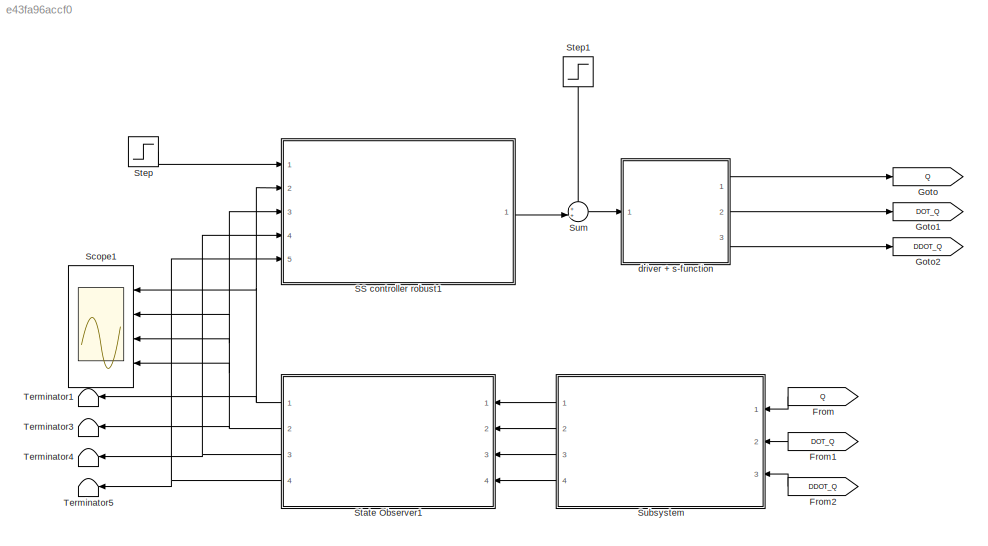
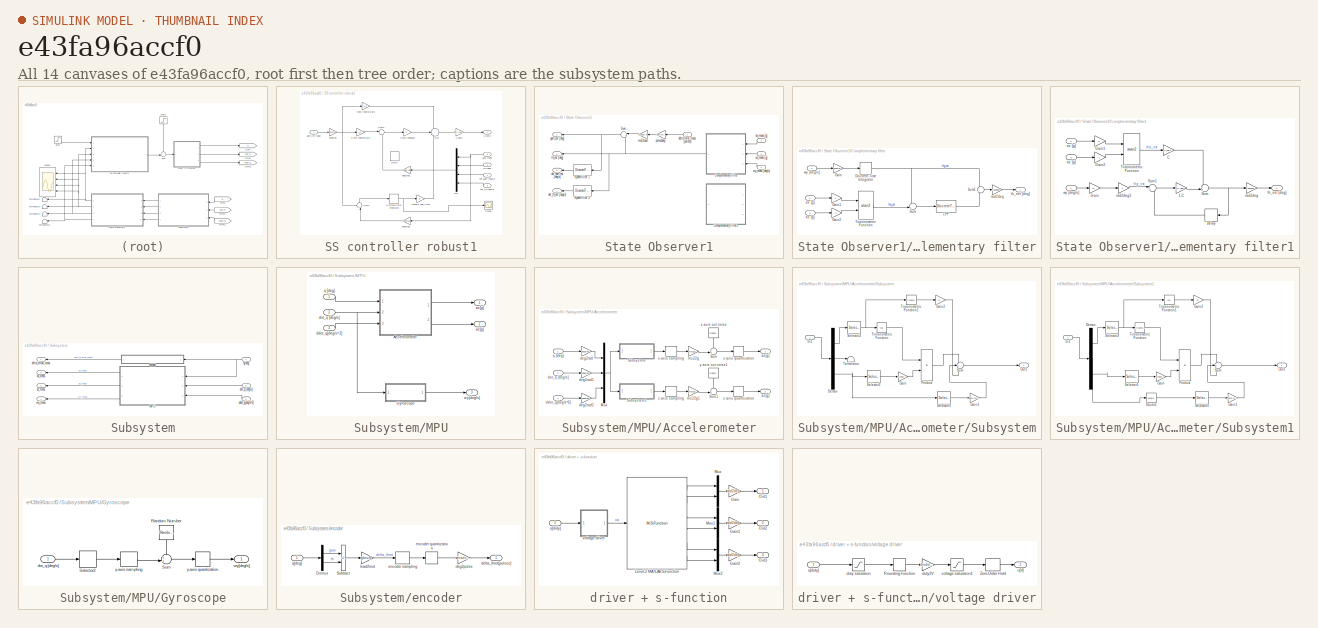
[diagram: thumbnail index - all 14 canvases of the model, root first then tree order]
MODEL slx_e43fa96accf0
KIND model
CONFIG AbsTol = auto
CONFIG EnableMultiTasking = off
CONFIG FixedStep = auto
CONFIG MaxStep = auto
CONFIG MinStep = auto
CONFIG RelTol = 1e-3
CONFIG SampleTimeConstraint = Unconstrained
CONFIG SolverName = VariableStepAuto
CONFIG StartTime = 0.0
CONFIG StopTime = 20.0
BLOCK [From] From
  GotoTag = Q
BLOCK [From] From1
  GotoTag = DOT_Q
BLOCK [From] From2
  GotoTag = DDOT_Q
BLOCK [Goto] Goto
  GotoTag = Q
BLOCK [Goto] Goto1
  GotoTag = DOT_Q
BLOCK [Goto] Goto2
  GotoTag = DDOT_Q
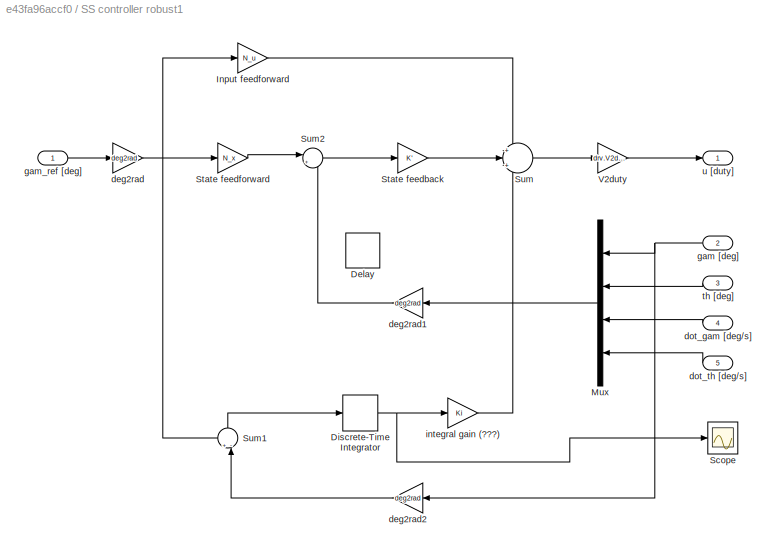
BLOCK [SubSystem] SS controller robust1
  Ports = [5, 1]
  RequestExecContextInheritance = off
BLOCK [Delay] SS controller robust1/Delay
  Commented = on
  DelayLength = 1
  InitialCondition = 0
  InputPortMap = u0
  NameLocation = right
  Ports = [1, 1]
BLOCK [DiscreteIntegrator] SS controller robust1/Discrete-Time Integrator
  ICPrevOutput = DiscIntNeverNeededParam
  ICPrevScaledInput = DiscIntNeverNeededParam
  InitialConditionSetting = Auto
  Ports = [1, 1]
  SampleTime = 0.01
BLOCK [Gain] SS controller robust1/Input feedforward
  Gain = N_u
BLOCK [Mux] SS controller robust1/Mux
  DisplayOption = bar
  Ports = [4, 1]
BLOCK [Scope] SS controller robust1/Scope
  Floating = off
  NumInputPorts = 1
  Ports = [1]
  ScopeSpecificationString = Simulink.scopes.TimeScopeBlockCfg('CurrentConfiguration', extmgr.ConfigurationSet(extmgr.Configuration('Core','General UI',true),extmgr.Configuration('Core','Source UI',true),extmgr.Configuration('Sources','WiredSimulink',true,'DataLoggingVariableName','ScopeData1'),extmgr.Configuration('Visuals','Time Domain',true,'SerializedDisplays',{struct('MinYLimReal','-2.87604','MaxYLimReal','25.88411','YLa...<+1467ch>
BLOCK [Gain] SS controller robust1/State feedback
  Gain = K'
  Multiplication = Matrix(u*K)
BLOCK [Gain] SS controller robust1/State feedforward	
  Gain = N_x
  Multiplication = Matrix(u*K)
BLOCK [Sum] SS controller robust1/Sum
  Inputs = +|+|+
  Ports = [3, 1]
BLOCK [Sum] SS controller robust1/Sum1
  Inputs = +-|
  NameLocation = left
  Ports = [2, 1]
BLOCK [Sum] SS controller robust1/Sum2
  Inputs = |+-
  Ports = [2, 1]
BLOCK [Gain] SS controller robust1/V2duty
  Gain = drv.V2duty
BLOCK [Gain] SS controller robust1/deg2rad
  Gain = deg2rad
BLOCK [Gain] SS controller robust1/deg2rad1
  Gain = deg2rad
BLOCK [Gain] SS controller robust1/deg2rad2
  Gain = deg2rad
BLOCK [Inport] SS controller robust1/dot_gam [deg//s]
  Port = 4
BLOCK [Inport] SS controller robust1/dot_th [deg//s]
  Port = 5
BLOCK [Inport] SS controller robust1/gam [deg]
  Port = 2
BLOCK [Inport] SS controller robust1/gam_ref [deg]
BLOCK [Gain] SS controller robust1/integral gain (???)
  Gain = Ki
BLOCK [Inport] SS controller robust1/th [deg]
  Port = 3
BLOCK [Outport] SS controller robust1/u [duty]
BLOCK [Scope] Scope1
  Floating = off
  NumInputPorts = 4
  Ports = [4]
  ScopeSpecificationString = Simulink.scopes.TimeScopeBlockCfg('CurrentConfiguration', extmgr.ConfigurationSet(extmgr.Configuration('Core','General UI',true),extmgr.Configuration('Core','Source UI',true),extmgr.Configuration('Sources','WiredSimulink',true,'DataLogging',true,'DataLoggingSaveFormat','StructureWithTime','DataLoggingVariableName','MotorData'),extmgr.Configuration('Visuals','Time Domain',true,'SerializedDisplays',...<+3568ch>
BLOCK [SubSystem] State Observer1
  Ports = [4, 4]
  RequestExecContextInheritance = off
BLOCK [SubSystem] State Observer1/Complementary filter
  Ports = [3, 1]
  RequestExecContextInheritance = off
BLOCK [DiscreteIntegrator] State Observer1/Complementary filter/Discrete-Time Integrator
  ICPrevOutput = DiscIntNeverNeededParam
  ICPrevScaledInput = DiscIntNeverNeededParam
  InitialConditionSetting = Auto
  Ports = [1, 1]
  SampleTime = Ts
  gainval = 1
BLOCK [Gain] State Observer1/Complementary filter/Gain
  Gain = deg2rad
BLOCK [Gain] State Observer1/Complementary filter/Gain1
BLOCK [Gain] State Observer1/Complementary filter/Gain2
  Gain = -1
BLOCK [DiscreteTransferFcn] State Observer1/Complementary filter/LPF
  Denominator = [denLPFz]
  InputPortMap = u0
  Numerator = [numLPFz]
  Ports = [1, 1]
  SampleTime = Ts
BLOCK [Sum] State Observer1/Complementary filter/Sum
  Inputs = -+|
  Ports = [2, 1]
BLOCK [Sum] State Observer1/Complementary filter/Sum1
  Ports = [2, 1]
BLOCK [Trigonometry] State Observer1/Complementary filter/Trigonometric Function
  Operator = atan2
  Ports = [2, 1]
BLOCK [Inport] State Observer1/Complementary filter/ax [g] 
BLOCK [Inport] State Observer1/Complementary filter/az [g] 
  Port = 2
BLOCK [Gain] State Observer1/Complementary filter/rad2deg
  Gain = rad2deg
BLOCK [Outport] State Observer1/Complementary filter/th_est [deg] 
BLOCK [Inport] State Observer1/Complementary filter/wy [deg//s]
  Port = 3
BLOCK [SubSystem] State Observer1/Complementary filter1
  Commented = on
  Ports = [3, 1]
  RequestExecContextInheritance = off
BLOCK [Gain] State Observer1/Complementary filter1/1-C
  Gain = 1-C_gain
BLOCK [Gain] State Observer1/Complementary filter1/C
  Gain = C_gain
BLOCK [Delay] State Observer1/Complementary filter1/Delay
  DelayLength = 1
  InputPortMap = u0
  NameLocation = top
  Ports = [1, 1]
BLOCK [Gain] State Observer1/Complementary filter1/Gain
  Gain = 11
BLOCK [Gain] State Observer1/Complementary filter1/Gain1
BLOCK [Gain] State Observer1/Complementary filter1/Gain2
  Gain = -1
BLOCK [Sum] State Observer1/Complementary filter1/Sum
  Inputs = ++|
  Ports = [2, 1]
BLOCK [Sum] State Observer1/Complementary filter1/Sum1
  Inputs = |++
  Ports = [2, 1]
BLOCK [Trigonometry] State Observer1/Complementary filter1/Trigonometric Function
  Operator = atan2
  Ports = [2, 1]
BLOCK [Inport] State Observer1/Complementary filter1/ax [g] 
  Port = 2
BLOCK [Inport] State Observer1/Complementary filter1/az [g] 
  Port = 3
BLOCK [Gain] State Observer1/Complementary filter1/rad2deg
  Gain = rad2deg
BLOCK [Gain] State Observer1/Complementary filter1/rad2deg3
  Gain = T
BLOCK [Outport] State Observer1/Complementary filter1/th_est [deg] 
BLOCK [Inport] State Observer1/Complementary filter1/wy [deg//s]
BLOCK [DiscreteTransferFcn] State Observer1/Speed filter 1
  Denominator = [denHw]
  InputPortMap = u0
  Numerator = [numHw]
  Ports = [1, 1]
  SampleTime = Ts
BLOCK [DiscreteTransferFcn] State Observer1/Speed filter 2
  Denominator = [denHw]
  InputPortMap = u0
  Numerator = [numHw]
  Ports = [1, 1]
  SampleTime = Ts
BLOCK [Sum] State Observer1/Sum
  Inputs = |++
  NameLocation = top
  Ports = [2, 1]
BLOCK [Inport] State Observer1/ax_meas [g] 
  Port = 2
BLOCK [Inport] State Observer1/az_meas [g] 
  Port = 3
BLOCK [Inport] State Observer1/delta_throt_meas [pulses] 
BLOCK [Outport] State Observer1/dot_gam_est [deg//s]
  Port = 3
BLOCK [Outport] State Observer1/dot_th_est [deg//s]
  Port = 4
BLOCK [Outport] State Observer1/gam_est [deg]
BLOCK [Gain] State Observer1/mot2load
  Gain = 1/gbox.N
BLOCK [Gain] State Observer1/pulse2deg
  Gain = sens.enc.pulse2deg
BLOCK [Outport] State Observer1/th_est [deg]
  Port = 2
BLOCK [Inport] State Observer1/wy_meas [deg//s]
  Port = 4
BLOCK [Step] Step
  After = step_size
  SampleTime = 0.01
BLOCK [Step] Step1
  After = step_disturbance
  NameLocation = left
  SampleTime = 0.01
  Time = 11
BLOCK [SubSystem] Subsystem
  Ports = [3, 4]
  RequestExecContextInheritance = off
BLOCK [SubSystem] Subsystem/MPU
  Ports = [3, 3]
  RequestExecContextInheritance = off
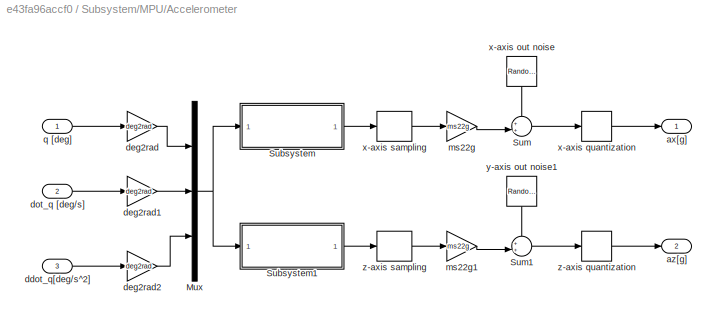
BLOCK [SubSystem] Subsystem/MPU/Accelerometer
  Ports = [3, 2]
  RequestExecContextInheritance = off
BLOCK [Mux] Subsystem/MPU/Accelerometer/Mux
  DisplayOption = bar
  Inputs = 3
  Ports = [3, 1]
BLOCK [SubSystem] Subsystem/MPU/Accelerometer/Subsystem
  Ports = [1, 1]
  RequestExecContextInheritance = off
BLOCK [Demux] Subsystem/MPU/Accelerometer/Subsystem/Demux
  Outputs = 3
  Ports = [1, 3]
BLOCK [Gain] Subsystem/MPU/Accelerometer/Subsystem/Gain
  Gain = wheel.r
BLOCK [Gain] Subsystem/MPU/Accelerometer/Subsystem/Gain1
  Gain = sens.mpu.zb
BLOCK [Gain] Subsystem/MPU/Accelerometer/Subsystem/Gain2
  Gain = g
BLOCK [Inport] Subsystem/MPU/Accelerometer/Subsystem/In1
BLOCK [Outport] Subsystem/MPU/Accelerometer/Subsystem/Out1
BLOCK [Product] Subsystem/MPU/Accelerometer/Subsystem/Product
  Ports = [2, 1]
BLOCK [Selector] Subsystem/MPU/Accelerometer/Subsystem/Selector1
  IndexOptions = Index vector (dialog)
  Indices = 1
  InputPortWidth = 2
  OutputSizes = 1
  Ports = [1, 1]
BLOCK [Selector] Subsystem/MPU/Accelerometer/Subsystem/Selector2
  IndexOptions = Index vector (dialog)
  Indices = 2
  InputPortWidth = 2
  OutputSizes = 1
  Ports = [1, 1]
BLOCK [Selector] Subsystem/MPU/Accelerometer/Subsystem/Selector3
  IndexOptions = Index vector (dialog)
  Indices = 2
  InputPortWidth = 2
  OutputSizes = 1
  Ports = [1, 1]
BLOCK [Sum] Subsystem/MPU/Accelerometer/Subsystem/Sum
  Inputs = +++
  Ports = [3, 1]
BLOCK [Terminator] Subsystem/MPU/Accelerometer/Subsystem/Terminator
BLOCK [Trigonometry] Subsystem/MPU/Accelerometer/Subsystem/Trigonometric Function
  Operator = cos
  Ports = [1, 1]
BLOCK [Trigonometry] Subsystem/MPU/Accelerometer/Subsystem/Trigonometric Function1
  Ports = [1, 1]
BLOCK [SubSystem] Subsystem/MPU/Accelerometer/Subsystem1
  Ports = [1, 1]
  RequestExecContextInheritance = off
BLOCK [Demux] Subsystem/MPU/Accelerometer/Subsystem1/Demux
  Outputs = 3
  Ports = [1, 3]
BLOCK [Gain] Subsystem/MPU/Accelerometer/Subsystem1/Gain
  Gain = wheel.r
BLOCK [Gain] Subsystem/MPU/Accelerometer/Subsystem1/Gain1
  Gain = -sens.mpu.zb
BLOCK [Gain] Subsystem/MPU/Accelerometer/Subsystem1/Gain2
  Gain = -g
BLOCK [Inport] Subsystem/MPU/Accelerometer/Subsystem1/In1
BLOCK [Outport] Subsystem/MPU/Accelerometer/Subsystem1/Out1
BLOCK [Product] Subsystem/MPU/Accelerometer/Subsystem1/Product
  Ports = [2, 1]
BLOCK [Selector] Subsystem/MPU/Accelerometer/Subsystem1/Selector1
  IndexOptions = Index vector (dialog)
  Indices = 1
  InputPortWidth = 2
  OutputSizes = 1
  Ports = [1, 1]
BLOCK [Selector] Subsystem/MPU/Accelerometer/Subsystem1/Selector2
  IndexOptions = Index vector (dialog)
  Indices = 2
  InputPortWidth = 2
  OutputSizes = 1
  Ports = [1, 1]
BLOCK [Selector] Subsystem/MPU/Accelerometer/Subsystem1/Selector3
  IndexOptions = Index vector (dialog)
  Indices = 2
  InputPortWidth = 2
  OutputSizes = 1
  Ports = [1, 1]
BLOCK [Math] Subsystem/MPU/Accelerometer/Subsystem1/Square
  Operator = square
  Ports = [1, 1]
BLOCK [Sum] Subsystem/MPU/Accelerometer/Subsystem1/Sum
  Inputs = +++
  Ports = [3, 1]
BLOCK [Trigonometry] Subsystem/MPU/Accelerometer/Subsystem1/Trigonometric Function
  Ports = [1, 1]
BLOCK [Trigonometry] Subsystem/MPU/Accelerometer/Subsystem1/Trigonometric Function1
  Operator = cos
  Ports = [1, 1]
BLOCK [Sum] Subsystem/MPU/Accelerometer/Sum
  Inputs = ++|
  Ports = [2, 1]
BLOCK [Sum] Subsystem/MPU/Accelerometer/Sum1
  Inputs = ++|
  Ports = [2, 1]
BLOCK [Outport] Subsystem/MPU/Accelerometer/ax[g]
BLOCK [Outport] Subsystem/MPU/Accelerometer/az[g]
  Port = 2
BLOCK [Inport] Subsystem/MPU/Accelerometer/ddot_q[deg//s^2]
  Port = 3
BLOCK [Gain] Subsystem/MPU/Accelerometer/deg2rad
  Gain = deg2rad
BLOCK [Gain] Subsystem/MPU/Accelerometer/deg2rad1
  Gain = deg2rad
BLOCK [Gain] Subsystem/MPU/Accelerometer/deg2rad2
  Gain = deg2rad
BLOCK [Inport] Subsystem/MPU/Accelerometer/dot_q [deg//s]
  Port = 2
BLOCK [Gain] Subsystem/MPU/Accelerometer/ms22g
  Gain = ms22g
BLOCK [Gain] Subsystem/MPU/Accelerometer/ms22g1
  Gain = ms22g
BLOCK [Inport] Subsystem/MPU/Accelerometer/q [deg]
BLOCK [RandomNumber] Subsystem/MPU/Accelerometer/x-axis out noise
  NameLocation = left
  SampleTime = Ts
  Variance = sens.mpu.acc.noisevar
BLOCK [Quantizer] Subsystem/MPU/Accelerometer/x-axis quantization
  QuantizationInterval = sens.mpu.acc.LSB2g
BLOCK [ZeroOrderHold] Subsystem/MPU/Accelerometer/x-axis sampling
  SampleTime = Ts
BLOCK [RandomNumber] Subsystem/MPU/Accelerometer/y-axis out noise1
  NameLocation = left
  SampleTime = Ts
  Variance = sens.mpu.acc.noisevar
BLOCK [Quantizer] Subsystem/MPU/Accelerometer/z-axis quantization
  QuantizationInterval = sens.mpu.acc.LSB2g
BLOCK [ZeroOrderHold] Subsystem/MPU/Accelerometer/z-axis sampling
  SampleTime = Ts
BLOCK [SubSystem] Subsystem/MPU/Gyroscope
  Ports = [1, 1]
  RequestExecContextInheritance = off
BLOCK [RandomNumber] Subsystem/MPU/Gyroscope/Random Number
  NameLocation = left
  SampleTime = Ts
  Variance = sens.mpu.gyro.noisevar
BLOCK [Selector] Subsystem/MPU/Gyroscope/Selector2
  IndexOptions = Index vector (dialog)
  Indices = 2
  InputPortWidth = 2
  OutputSizes = 1
  Ports = [1, 1]
BLOCK [Sum] Subsystem/MPU/Gyroscope/Sum
  Inputs = ++|
  Ports = [2, 1]
BLOCK [Inport] Subsystem/MPU/Gyroscope/dot_q [deg//s]
BLOCK [Outport] Subsystem/MPU/Gyroscope/wy[deg//s]
BLOCK [Quantizer] Subsystem/MPU/Gyroscope/y-axis quantization
  QuantizationInterval = sens.mpu.gyro.LSB2degs
BLOCK [ZeroOrderHold] Subsystem/MPU/Gyroscope/y-axis sampling
  SampleTime = Ts
BLOCK [Outport] Subsystem/MPU/ax[g]
BLOCK [Outport] Subsystem/MPU/az[g]
  Port = 2
BLOCK [Inport] Subsystem/MPU/ddot_q[deg//s^2]
  Port = 3
BLOCK [Inport] Subsystem/MPU/dot_q [deg//s]
  Port = 2
BLOCK [Inport] Subsystem/MPU/q [deg]
BLOCK [Outport] Subsystem/MPU/wy[deg//s]
  Port = 3
BLOCK [Outport] Subsystem/ax_meas
  Port = 2
BLOCK [Outport] Subsystem/az_meas
  Port = 3
BLOCK [Inport] Subsystem/ddot_q[deg//s^2]
  Port = 3
BLOCK [Outport] Subsystem/delta_throat_meas
BLOCK [Inport] Subsystem/dot_q [deg//s]
  Port = 2
BLOCK [SubSystem] Subsystem/encoder
  Ports = [1, 1]
  RequestExecContextInheritance = off
BLOCK [Demux] Subsystem/encoder/Demux
  Outputs = 2
  Ports = [1, 2]
BLOCK [Sum] Subsystem/encoder/Subtract
  IconShape = rectangular
  Inputs = +-
  Ports = [2, 1]
BLOCK [Gain] Subsystem/encoder/deg2pulse
  Gain = sens.enc.deg2pulse
BLOCK [Outport] Subsystem/encoder/delta_throt[pulses]
BLOCK [Quantizer] Subsystem/encoder/encoder quantization
  QuantizationInterval = sens.enc.pulse2deg
BLOCK [ZeroOrderHold] Subsystem/encoder/encoder sampling
  SampleTime = Ts
BLOCK [Gain] Subsystem/encoder/load2mot
  Gain = gbox.N
BLOCK [Inport] Subsystem/encoder/q[deg]
BLOCK [Inport] Subsystem/q[deg]
BLOCK [Outport] Subsystem/wy_meas
  Port = 4
BLOCK [Sum] Sum
  Inputs = ++|
  Ports = [2, 1]
BLOCK [Terminator] Terminator1
BLOCK [Terminator] Terminator3
BLOCK [Terminator] Terminator4
BLOCK [Terminator] Terminator5
BLOCK [SubSystem] driver + s-function
  Ports = [1, 3]
  RequestExecContextInheritance = off
BLOCK [Gain] driver + s-function/Gain
  Gain = rad2deg
BLOCK [Gain] driver + s-function/Gain1
  Gain = rad2deg
BLOCK [Gain] driver + s-function/Gain2
  Gain = rad2deg
BLOCK [M-S-Function] driver + s-function/Level-2 MATLAB S-Function  
  FunctionName = sfun_balrob_long_dyn
  Parameters = x0, body, mot, gbox, wheel
  Ports = [1, 6]
BLOCK [Mux] driver + s-function/Mux
  DisplayOption = bar
  Inputs = 2
  Ports = [2, 1]
BLOCK [Mux] driver + s-function/Mux1
  DisplayOption = bar
  Inputs = 2
  Ports = [2, 1]
BLOCK [Mux] driver + s-function/Mux2
  DisplayOption = bar
  Inputs = 2
  Ports = [2, 1]
BLOCK [Outport] driver + s-function/Out1
BLOCK [Outport] driver + s-function/Out2
  Port = 2
BLOCK [Outport] driver + s-function/Out3
  Port = 3
BLOCK [Inport] driver + s-function/u[duty]
BLOCK [SubSystem] driver + s-function/voltage driver
  Ports = [1, 1]
  RequestExecContextInheritance = off
BLOCK [Rounding] driver + s-function/voltage driver/Rounding Function
  Operator = fix
BLOCK [ZeroOrderHold] driver + s-function/voltage driver/Zero-Order Hold
  SampleTime = Ts
BLOCK [Saturate] driver + s-function/voltage driver/duty saturation
  LowerLimit = -drv.dutymax
  UpperLimit = drv.dutymax
BLOCK [Gain] driver + s-function/voltage driver/duty2V
  Gain = drv.duty2V
BLOCK [Outport] driver + s-function/voltage driver/u[V]
BLOCK [Inport] driver + s-function/voltage driver/u[duty]
BLOCK [Saturate] driver + s-function/voltage driver/voltage saturation1
  LowerLimit = -drv.Vbus
  UpperLimit = drv.Vbus
LINE From1:1 -> Subsystem:2
LINE From2:1 -> Subsystem:3
LINE From:1 -> Subsystem:1
NET SS controller robust1/Discrete-Time Integrator:1 -> SS controller robust1/Scope:1, SS controller robust1/integral gain (???):1
LINE SS controller robust1/Input feedforward:1 -> SS controller robust1/Sum:1
LINE SS controller robust1/Mux:1 -> SS controller robust1/deg2rad1:1
LINE SS controller robust1/State feedback:1 -> SS controller robust1/Sum:2
LINE SS controller robust1/State feedforward	:1 -> SS controller robust1/Sum2:1
LINE SS controller robust1/Sum1:1 -> SS controller robust1/Discrete-Time Integrator:1
LINE SS controller robust1/Sum2:1 -> SS controller robust1/State feedback:1
LINE SS controller robust1/Sum:1 -> SS controller robust1/V2duty:1
LINE SS controller robust1/V2duty:1 -> SS controller robust1/u [duty]:1
LINE SS controller robust1/deg2rad1:1 -> SS controller robust1/Sum2:2
LINE SS controller robust1/deg2rad2:1 -> SS controller robust1/Sum1:2
NET SS controller robust1/deg2rad:1 -> SS controller robust1/Input feedforward:1, SS controller robust1/State feedforward	:1, SS controller robust1/Sum1:1
LINE SS controller robust1/dot_gam [deg//s]:1 -> SS controller robust1/Mux:3
LINE SS controller robust1/dot_th [deg//s]:1 -> SS controller robust1/Mux:4
NET SS controller robust1/gam [deg]:1 -> SS controller robust1/Mux:1, SS controller robust1/deg2rad2:1
LINE SS controller robust1/gam_ref [deg]:1 -> SS controller robust1/deg2rad:1
LINE SS controller robust1/integral gain (???):1 -> SS controller robust1/Sum:3
LINE SS controller robust1/th [deg]:1 -> SS controller robust1/Mux:2
LINE SS controller robust1:1 -> Sum:2
NET State Observer1/Complementary filter/Discrete-Time Integrator:1 -> State Observer1/Complementary filter/Sum1:1, State Observer1/Complementary filter/Sum:1
LINE State Observer1/Complementary filter/Gain1:1 -> State Observer1/Complementary filter/Trigonometric Function:1
LINE State Observer1/Complementary filter/Gain2:1 -> State Observer1/Complementary filter/Trigonometric Function:2
LINE State Observer1/Complementary filter/Gain:1 -> State Observer1/Complementary filter/Discrete-Time Integrator:1
LINE State Observer1/Complementary filter/LPF:1 -> State Observer1/Complementary filter/Sum1:2
LINE State Observer1/Complementary filter/Sum1:1 -> State Observer1/Complementary filter/rad2deg:1
LINE State Observer1/Complementary filter/Sum:1 -> State Observer1/Complementary filter/LPF:1
LINE State Observer1/Complementary filter/Trigonometric Function:1 -> State Observer1/Complementary filter/Sum:2
LINE State Observer1/Complementary filter/ax [g] :1 -> State Observer1/Complementary filter/Gain1:1
LINE State Observer1/Complementary filter/az [g] :1 -> State Observer1/Complementary filter/Gain2:1
LINE State Observer1/Complementary filter/rad2deg:1 -> State Observer1/Complementary filter/th_est [deg] :1
LINE State Observer1/Complementary filter/wy [deg//s]:1 -> State Observer1/Complementary filter/Gain:1
LINE State Observer1/Complementary filter1/1-C:1 -> State Observer1/Complementary filter1/Sum:2
LINE State Observer1/Complementary filter1/C:1 -> State Observer1/Complementary filter1/Sum:1
LINE State Observer1/Complementary filter1/Delay:1 -> State Observer1/Complementary filter1/Sum1:2
LINE State Observer1/Complementary filter1/Gain1:1 -> State Observer1/Complementary filter1/Trigonometric Function:1
LINE State Observer1/Complementary filter1/Gain2:1 -> State Observer1/Complementary filter1/Trigonometric Function:2
LINE State Observer1/Complementary filter1/Gain:1 -> State Observer1/Complementary filter1/rad2deg3:1
LINE State Observer1/Complementary filter1/Sum1:1 -> State Observer1/Complementary filter1/1-C:1
NET State Observer1/Complementary filter1/Sum:1 -> State Observer1/Complementary filter1/Delay:1, State Observer1/Complementary filter1/rad2deg:1
LINE State Observer1/Complementary filter1/Trigonometric Function:1 -> State Observer1/Complementary filter1/C:1
LINE State Observer1/Complementary filter1/ax [g] :1 -> State Observer1/Complementary filter1/Gain1:1
LINE State Observer1/Complementary filter1/az [g] :1 -> State Observer1/Complementary filter1/Gain2:1
LINE State Observer1/Complementary filter1/rad2deg3:1 -> State Observer1/Complementary filter1/Sum1:1
LINE State Observer1/Complementary filter1/rad2deg:1 -> State Observer1/Complementary filter1/th_est [deg] :1
LINE State Observer1/Complementary filter1/wy [deg//s]:1 -> State Observer1/Complementary filter1/Gain:1
NET State Observer1/Complementary filter:1 -> State Observer1/Speed filter 2:1, State Observer1/Sum:2, State Observer1/th_est [deg]:1
LINE State Observer1/Speed filter 1:1 -> State Observer1/dot_gam_est [deg//s]:1
LINE State Observer1/Speed filter 2:1 -> State Observer1/dot_th_est [deg//s]:1
NET State Observer1/Sum:1 -> State Observer1/Speed filter 1:1, State Observer1/gam_est [deg]:1
LINE State Observer1/ax_meas [g] :1 -> State Observer1/Complementary filter:1
LINE State Observer1/az_meas [g] :1 -> State Observer1/Complementary filter:2
LINE State Observer1/delta_throt_meas [pulses] :1 -> State Observer1/pulse2deg:1
LINE State Observer1/mot2load:1 -> State Observer1/Sum:1
LINE State Observer1/pulse2deg:1 -> State Observer1/mot2load:1
LINE State Observer1/wy_meas [deg//s]:1 -> State Observer1/Complementary filter:3
NET State Observer1:1 -> SS controller robust1:2, Scope1:1, Terminator1:1
NET State Observer1:2 -> SS controller robust1:3, Scope1:2, Scope1:3, Scope1:4, Terminator3:1
NET State Observer1:3 -> SS controller robust1:4, Terminator4:1
NET State Observer1:4 -> SS controller robust1:5, Terminator5:1
LINE Step1:1 -> Sum:1
LINE Step:1 -> SS controller robust1:1
NET Subsystem/MPU/Accelerometer/Mux:1 -> Subsystem/MPU/Accelerometer/Subsystem1:1, Subsystem/MPU/Accelerometer/Subsystem:1
LINE Subsystem/MPU/Accelerometer/Subsystem/Demux:1 -> Subsystem/MPU/Accelerometer/Subsystem/Selector2:1
LINE Subsystem/MPU/Accelerometer/Subsystem/Demux:2 -> Subsystem/MPU/Accelerometer/Subsystem/Terminator:1
NET Subsystem/MPU/Accelerometer/Subsystem/Demux:3 -> Subsystem/MPU/Accelerometer/Subsystem/Selector1:1, Subsystem/MPU/Accelerometer/Subsystem/Selector3:1
LINE Subsystem/MPU/Accelerometer/Subsystem/Gain1:1 -> Subsystem/MPU/Accelerometer/Subsystem/Sum:2
LINE Subsystem/MPU/Accelerometer/Subsystem/Gain2:1 -> Subsystem/MPU/Accelerometer/Subsystem/Sum:3
LINE Subsystem/MPU/Accelerometer/Subsystem/Gain:1 -> Subsystem/MPU/Accelerometer/Subsystem/Product:2
LINE Subsystem/MPU/Accelerometer/Subsystem/In1:1 -> Subsystem/MPU/Accelerometer/Subsystem/Demux:1
LINE Subsystem/MPU/Accelerometer/Subsystem/Product:1 -> Subsystem/MPU/Accelerometer/Subsystem/Sum:1
LINE Subsystem/MPU/Accelerometer/Subsystem/Selector1:1 -> Subsystem/MPU/Accelerometer/Subsystem/Gain:1
NET Subsystem/MPU/Accelerometer/Subsystem/Selector2:1 -> Subsystem/MPU/Accelerometer/Subsystem/Trigonometric Function1:1, Subsystem/MPU/Accelerometer/Subsystem/Trigonometric Function:1
LINE Subsystem/MPU/Accelerometer/Subsystem/Selector3:1 -> Subsystem/MPU/Accelerometer/Subsystem/Gain1:1
LINE Subsystem/MPU/Accelerometer/Subsystem/Sum:1 -> Subsystem/MPU/Accelerometer/Subsystem/Out1:1
LINE Subsystem/MPU/Accelerometer/Subsystem/Trigonometric Function1:1 -> Subsystem/MPU/Accelerometer/Subsystem/Gain2:1
LINE Subsystem/MPU/Accelerometer/Subsystem/Trigonometric Function:1 -> Subsystem/MPU/Accelerometer/Subsystem/Product:1
LINE Subsystem/MPU/Accelerometer/Subsystem1/Demux:1 -> Subsystem/MPU/Accelerometer/Subsystem1/Selector2:1
LINE Subsystem/MPU/Accelerometer/Subsystem1/Demux:2 -> Subsystem/MPU/Accelerometer/Subsystem1/Square:1
LINE Subsystem/MPU/Accelerometer/Subsystem1/Demux:3 -> Subsystem/MPU/Accelerometer/Subsystem1/Selector1:1
LINE Subsystem/MPU/Accelerometer/Subsystem1/Gain1:1 -> Subsystem/MPU/Accelerometer/Subsystem1/Sum:2
LINE Subsystem/MPU/Accelerometer/Subsystem1/Gain2:1 -> Subsystem/MPU/Accelerometer/Subsystem1/Sum:3
LINE Subsystem/MPU/Accelerometer/Subsystem1/Gain:1 -> Subsystem/MPU/Accelerometer/Subsystem1/Product:2
LINE Subsystem/MPU/Accelerometer/Subsystem1/In1:1 -> Subsystem/MPU/Accelerometer/Subsystem1/Demux:1
LINE Subsystem/MPU/Accelerometer/Subsystem1/Product:1 -> Subsystem/MPU/Accelerometer/Subsystem1/Sum:1
LINE Subsystem/MPU/Accelerometer/Subsystem1/Selector1:1 -> Subsystem/MPU/Accelerometer/Subsystem1/Gain:1
NET Subsystem/MPU/Accelerometer/Subsystem1/Selector2:1 -> Subsystem/MPU/Accelerometer/Subsystem1/Trigonometric Function1:1, Subsystem/MPU/Accelerometer/Subsystem1/Trigonometric Function:1
LINE Subsystem/MPU/Accelerometer/Subsystem1/Selector3:1 -> Subsystem/MPU/Accelerometer/Subsystem1/Gain1:1
LINE Subsystem/MPU/Accelerometer/Subsystem1/Square:1 -> Subsystem/MPU/Accelerometer/Subsystem1/Selector3:1
LINE Subsystem/MPU/Accelerometer/Subsystem1/Sum:1 -> Subsystem/MPU/Accelerometer/Subsystem1/Out1:1
LINE Subsystem/MPU/Accelerometer/Subsystem1/Trigonometric Function1:1 -> Subsystem/MPU/Accelerometer/Subsystem1/Gain2:1
LINE Subsystem/MPU/Accelerometer/Subsystem1/Trigonometric Function:1 -> Subsystem/MPU/Accelerometer/Subsystem1/Product:1
LINE Subsystem/MPU/Accelerometer/Subsystem1:1 -> Subsystem/MPU/Accelerometer/z-axis sampling:1
LINE Subsystem/MPU/Accelerometer/Subsystem:1 -> Subsystem/MPU/Accelerometer/x-axis sampling:1
LINE Subsystem/MPU/Accelerometer/Sum1:1 -> Subsystem/MPU/Accelerometer/z-axis quantization:1
LINE Subsystem/MPU/Accelerometer/Sum:1 -> Subsystem/MPU/Accelerometer/x-axis quantization:1
LINE Subsystem/MPU/Accelerometer/ddot_q[deg//s^2]:1 -> Subsystem/MPU/Accelerometer/deg2rad2:1
LINE Subsystem/MPU/Accelerometer/deg2rad1:1 -> Subsystem/MPU/Accelerometer/Mux:2
LINE Subsystem/MPU/Accelerometer/deg2rad2:1 -> Subsystem/MPU/Accelerometer/Mux:3
LINE Subsystem/MPU/Accelerometer/deg2rad:1 -> Subsystem/MPU/Accelerometer/Mux:1
LINE Subsystem/MPU/Accelerometer/dot_q [deg//s]:1 -> Subsystem/MPU/Accelerometer/deg2rad1:1
LINE Subsystem/MPU/Accelerometer/ms22g1:1 -> Subsystem/MPU/Accelerometer/Sum1:2
LINE Subsystem/MPU/Accelerometer/ms22g:1 -> Subsystem/MPU/Accelerometer/Sum:2
LINE Subsystem/MPU/Accelerometer/q [deg]:1 -> Subsystem/MPU/Accelerometer/deg2rad:1
LINE Subsystem/MPU/Accelerometer/x-axis out noise:1 -> Subsystem/MPU/Accelerometer/Sum:1
LINE Subsystem/MPU/Accelerometer/x-axis quantization:1 -> Subsystem/MPU/Accelerometer/ax[g]:1
LINE Subsystem/MPU/Accelerometer/x-axis sampling:1 -> Subsystem/MPU/Accelerometer/ms22g:1
LINE Subsystem/MPU/Accelerometer/y-axis out noise1:1 -> Subsystem/MPU/Accelerometer/Sum1:1
LINE Subsystem/MPU/Accelerometer/z-axis quantization:1 -> Subsystem/MPU/Accelerometer/az[g]:1
LINE Subsystem/MPU/Accelerometer/z-axis sampling:1 -> Subsystem/MPU/Accelerometer/ms22g1:1
LINE Subsystem/MPU/Accelerometer:1 -> Subsystem/MPU/ax[g]:1
LINE Subsystem/MPU/Accelerometer:2 -> Subsystem/MPU/az[g]:1
LINE Subsystem/MPU/Gyroscope/Random Number:1 -> Subsystem/MPU/Gyroscope/Sum:1
LINE Subsystem/MPU/Gyroscope/Selector2:1 -> Subsystem/MPU/Gyroscope/y-axis sampling:1
LINE Subsystem/MPU/Gyroscope/Sum:1 -> Subsystem/MPU/Gyroscope/y-axis quantization:1
LINE Subsystem/MPU/Gyroscope/dot_q [deg//s]:1 -> Subsystem/MPU/Gyroscope/Selector2:1
LINE Subsystem/MPU/Gyroscope/y-axis quantization:1 -> Subsystem/MPU/Gyroscope/wy[deg//s]:1
LINE Subsystem/MPU/Gyroscope/y-axis sampling:1 -> Subsystem/MPU/Gyroscope/Sum:2
LINE Subsystem/MPU/Gyroscope:1 -> Subsystem/MPU/wy[deg//s]:1
LINE Subsystem/MPU/ddot_q[deg//s^2]:1 -> Subsystem/MPU/Accelerometer:3
NET Subsystem/MPU/dot_q [deg//s]:1 -> Subsystem/MPU/Accelerometer:2, Subsystem/MPU/Gyroscope:1
LINE Subsystem/MPU/q [deg]:1 -> Subsystem/MPU/Accelerometer:1
LINE Subsystem/MPU:1 -> Subsystem/ax_meas:1
LINE Subsystem/MPU:2 -> Subsystem/az_meas:1
LINE Subsystem/MPU:3 -> Subsystem/wy_meas:1
LINE Subsystem/ddot_q[deg//s^2]:1 -> Subsystem/MPU:3
LINE Subsystem/dot_q [deg//s]:1 -> Subsystem/MPU:2
LINE Subsystem/encoder/Demux:1 -> Subsystem/encoder/Subtract:1
LINE Subsystem/encoder/Demux:2 -> Subsystem/encoder/Subtract:2
LINE Subsystem/encoder/Subtract:1 -> Subsystem/encoder/load2mot:1
LINE Subsystem/encoder/deg2pulse:1 -> Subsystem/encoder/delta_throt[pulses]:1
LINE Subsystem/encoder/encoder quantization:1 -> Subsystem/encoder/deg2pulse:1
LINE Subsystem/encoder/encoder sampling:1 -> Subsystem/encoder/encoder quantization:1
LINE Subsystem/encoder/load2mot:1 -> Subsystem/encoder/encoder sampling:1
LINE Subsystem/encoder/q[deg]:1 -> Subsystem/encoder/Demux:1
LINE Subsystem/encoder:1 -> Subsystem/delta_throat_meas:1
NET Subsystem/q[deg]:1 -> Subsystem/MPU:1, Subsystem/encoder:1
LINE Subsystem:1 -> State Observer1:1
LINE Subsystem:2 -> State Observer1:2
LINE Subsystem:3 -> State Observer1:3
LINE Subsystem:4 -> State Observer1:4
LINE Sum:1 -> driver + s-function:1
LINE driver + s-function/Gain1:1 -> driver + s-function/Out2:1
LINE driver + s-function/Gain2:1 -> driver + s-function/Out3:1
LINE driver + s-function/Gain:1 -> driver + s-function/Out1:1
LINE driver + s-function/Level-2 MATLAB S-Function  :1 -> driver + s-function/Mux:1
LINE driver + s-function/Level-2 MATLAB S-Function  :2 -> driver + s-function/Mux:2
LINE driver + s-function/Level-2 MATLAB S-Function  :3 -> driver + s-function/Mux1:1
LINE driver + s-function/Level-2 MATLAB S-Function  :4 -> driver + s-function/Mux1:2
LINE driver + s-function/Level-2 MATLAB S-Function  :5 -> driver + s-function/Mux2:1
LINE driver + s-function/Level-2 MATLAB S-Function  :6 -> driver + s-function/Mux2:2
LINE driver + s-function/Mux1:1 -> driver + s-function/Gain1:1
LINE driver + s-function/Mux2:1 -> driver + s-function/Gain2:1
LINE driver + s-function/Mux:1 -> driver + s-function/Gain:1
LINE driver + s-function/u[duty]:1 -> driver + s-function/voltage driver:1
LINE driver + s-function/voltage driver/Rounding Function:1 -> driver + s-function/voltage driver/duty2V:1
LINE driver + s-function/voltage driver/Zero-Order Hold:1 -> driver + s-function/voltage driver/u[V]:1
LINE driver + s-function/voltage driver/duty saturation:1 -> driver + s-function/voltage driver/Rounding Function:1
LINE driver + s-function/voltage driver/duty2V:1 -> driver + s-function/voltage driver/voltage saturation1:1
LINE driver + s-function/voltage driver/u[duty]:1 -> driver + s-function/voltage driver/duty saturation:1
LINE driver + s-function/voltage driver/voltage saturation1:1 -> driver + s-function/voltage driver/Zero-Order Hold:1
LINE driver + s-function/voltage driver:1 -> driver + s-function/Level-2 MATLAB S-Function  :1
LINE driver + s-function:1 -> Goto:1
LINE driver + s-function:2 -> Goto1:1
LINE driver + s-function:3 -> Goto2:1
note: NET lines group one-source signal fan-out (src -> all destinations, sorted); 1:1 wires keep LINE
